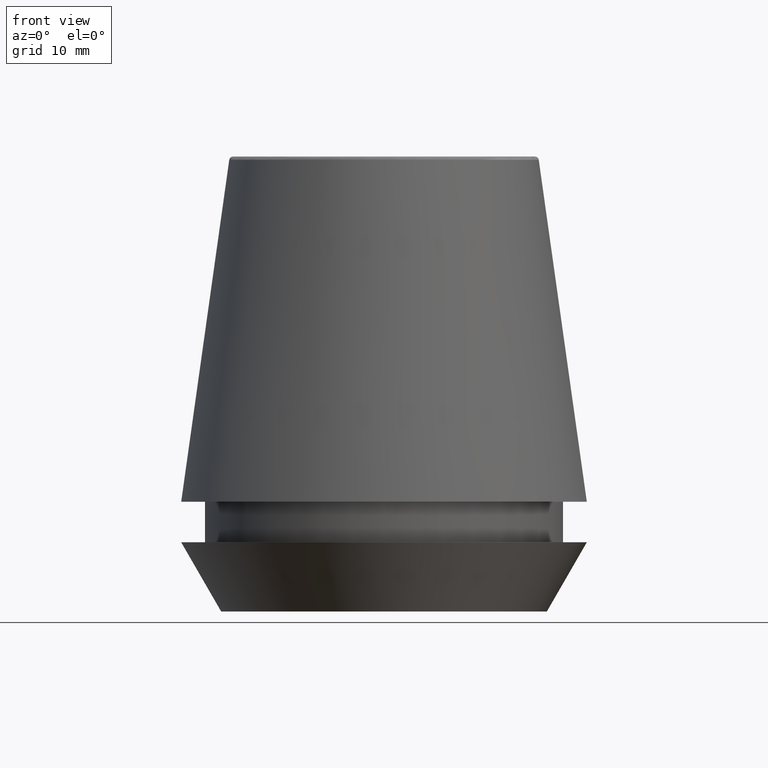
[diagram: clean part render]
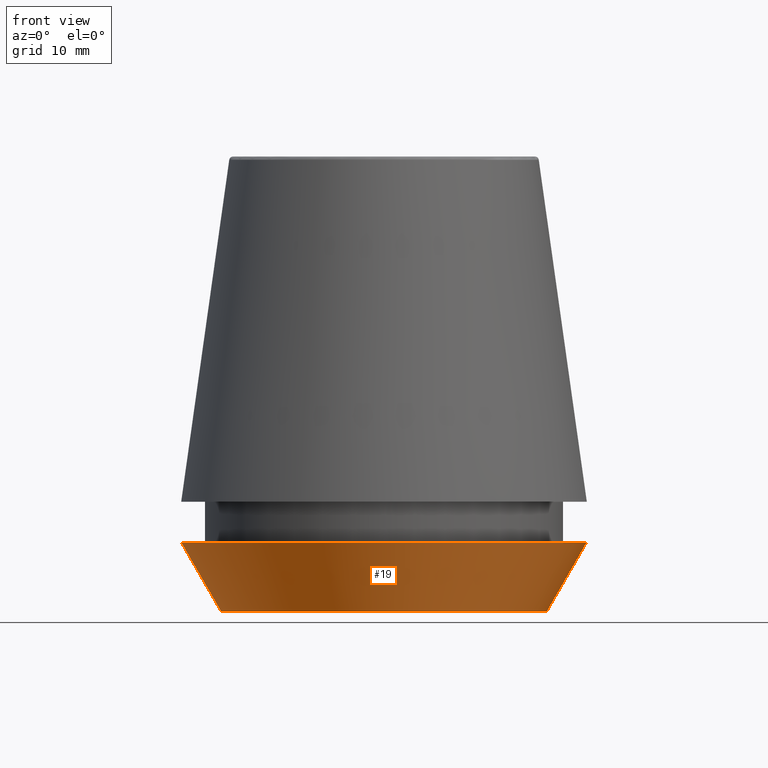
[diagram: same view with one face highlighted and labeled with its STEP entity id]
A machine part, front view. The second image highlights one B-rep face of the part: STEP entity #19.
In plain terms, the highlighted conical surface has half-angle 30 deg.
Its self-contained STEP definition (entity closure, byte-faithful):
#1 = FACE_OUTER_BOUND ( 'NONE', #145, .T. ) ;
#3 = CARTESIAN_POINT ( 'NONE',  ( -20.50000000000000000, 2.510525938252074100E-015, 7.000000000000006200 ) ) ;
#19 = ADVANCED_FACE ( 'NONE', ( #1 ), #350, .T. ) ;
#31 = DIRECTION ( 'NONE',  ( 1.000000000000000000, 0.0000000000000000000, 0.0000000000000000000 ) ) ;
#36 = DIRECTION ( 'NONE',  ( -0.4999999999999941700, 6.123233995736694500E-017, 0.8660254037844420400 ) ) ;
#47 = AXIS2_PLACEMENT_3D ( 'NONE', #331, #122, #301 ) ;
#49 = DIRECTION ( 'NONE',  ( 0.4999999999999941700, 0.0000000000000000000, 0.8660254037844420400 ) ) ;
#58 = VERTEX_POINT ( 'NONE', #93 ) ;
#61 = CARTESIAN_POINT ( 'NONE',  ( 0.0000000000000000000, 0.0000000000000000000, 0.0000000000000000000 ) ) ;
#68 = VERTEX_POINT ( 'NONE', #3 ) ;
#92 = ORIENTED_EDGE ( 'NONE', *, *, #136, .F. ) ;
#93 = CARTESIAN_POINT ( 'NONE',  ( 16.45854811567268100, 0.0000000000000000000, 0.0000000000000000000 ) ) ;
#95 = LINE ( 'NONE', #206, #244 ) ;
#96 = VERTEX_POINT ( 'NONE', #160 ) ;
#99 = CARTESIAN_POINT ( 'NONE',  ( 0.0000000000000000000, 0.0000000000000000000, 7.000000000000006200 ) ) ;
#113 = CIRCLE ( 'NONE', #268, 20.50000000000000000 ) ;
#122 = DIRECTION ( 'NONE',  ( -0.0000000000000000000, -0.0000000000000000000, 1.000000000000000000 ) ) ;
#132 = CIRCLE ( 'NONE', #47, 16.45854811567268100 ) ;
#136 = EDGE_CURVE ( 'NONE', #68, #96, #113, .T. ) ;
#145 = EDGE_LOOP ( 'NONE', ( #344, #250, #169, #92 ) ) ;
#150 = LINE ( 'NONE', #271, #210 ) ;
#160 = CARTESIAN_POINT ( 'NONE',  ( 20.50000000000000000, 0.0000000000000000000, 7.000000000000006200 ) ) ;
#166 = DIRECTION ( 'NONE',  ( 1.000000000000000000, 0.0000000000000000000, 0.0000000000000000000 ) ) ;
#169 = ORIENTED_EDGE ( 'NONE', *, *, #249, .T. ) ;
#206 = CARTESIAN_POINT ( 'NONE',  ( 16.45854811567268100, 0.0000000000000000000, 0.0000000000000000000 ) ) ;
#210 = VECTOR ( 'NONE', #36, 1000.000000000000000 ) ;
#234 = CARTESIAN_POINT ( 'NONE',  ( -16.45854811567268100, 2.263058382549599700E-015, 0.0000000000000000000 ) ) ;
#244 = VECTOR ( 'NONE', #49, 1000.000000000000000 ) ;
#249 = EDGE_CURVE ( 'NONE', #58, #96, #95, .T. ) ;
#250 = ORIENTED_EDGE ( 'NONE', *, *, #323, .T. ) ;
#268 = AXIS2_PLACEMENT_3D ( 'NONE', #99, #335, #166 ) ;
#269 = VERTEX_POINT ( 'NONE', #234 ) ;
#271 = CARTESIAN_POINT ( 'NONE',  ( -16.45854811567268100, 2.015590826847124800E-015, 0.0000000000000000000 ) ) ;
#277 = DIRECTION ( 'NONE',  ( -0.0000000000000000000, -0.0000000000000000000, 1.000000000000000000 ) ) ;
#299 = AXIS2_PLACEMENT_3D ( 'NONE', #61, #277, #31 ) ;
#301 = DIRECTION ( 'NONE',  ( 1.000000000000000000, 0.0000000000000000000, 0.0000000000000000000 ) ) ;
#308 = EDGE_CURVE ( 'NONE', #269, #68, #150, .T. ) ;
#323 = EDGE_CURVE ( 'NONE', #269, #58, #132, .T. ) ;
#331 = CARTESIAN_POINT ( 'NONE',  ( 0.0000000000000000000, 0.0000000000000000000, 0.0000000000000000000 ) ) ;
#335 = DIRECTION ( 'NONE',  ( -0.0000000000000000000, -0.0000000000000000000, 1.000000000000000000 ) ) ;
#344 = ORIENTED_EDGE ( 'NONE', *, *, #308, .F. ) ;
#350 = CONICAL_SURFACE ( 'NONE', #299, 16.45854811567268100, 0.5235987755982921500 ) ;